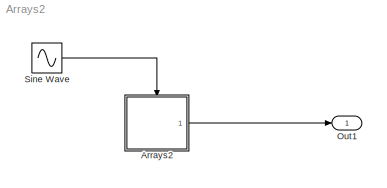
MODEL Arrays2
KIND model
CONFIG AbsTol = auto
CONFIG FixedStep = auto
CONFIG MaxStep = auto
CONFIG MinStep = auto
CONFIG RelTol = 1e-3
CONFIG Solver = FixedStepDiscrete
CONFIG SolverMode = Auto
CONFIG StartTime = 0.0
CONFIG StopTime = 10000.0
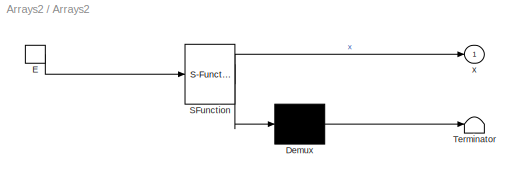
BLOCK [SubSystem] Arrays2
  MaskDescription = Stateflow diagram
  MaskDisplay = plot(sf('Private','sfblk','xIcon'),sf('Private','sfblk','yIcon'));text(0.5,0,sf('Private', 'sfblk', 'tIcon'),'HorizontalAl','Center','VerticalAl','Bottom');
  MaskIconFrame = off
  MaskIconOpaque = off
  MaskIconRotate = none
  MaskIconUnits = autoscale
  MaskSelfModifiable = on
  MaskType = Stateflow
  Ports = [0, 1, 0, 1]
  TreatAsAtomicUnit = off
BLOCK [Demux] Arrays2/ Demux 
  Outputs = 1
  Ports = [1, 1]
BLOCK [S-Function] Arrays2/ SFunction 
  FunctionName = sf_sfun
  PortCounts = [1 2]
  Ports = [1, 2]
  Tag = Stateflow S-Function Arrays2 1
BLOCK [Terminator] Arrays2/ Terminator 
BLOCK [TriggerPort] Arrays2/E
  Ports = [0, 1]
  ShowOutputPort = on
BLOCK [Outport] Arrays2/x
BLOCK [Outport] Out1
BLOCK [Sin] Sine Wave
  SampleTime = 0
  SineType = Time based
LINE Arrays2/ Demux :1 -> Arrays2/ Terminator :1
LINE Arrays2/ SFunction :1 -> Arrays2/ Demux :1
LINE Arrays2/ SFunction :2 -> Arrays2/x:1
LINE Arrays2/E:1 -> Arrays2/ SFunction :1
LINE Arrays2:1 -> Out1:1
LINE Sine Wave:1 -> Arrays2:trigger
CHART Arrays2 states=3 transitions=4
  STATE_LABEL 'A/\\nen:x[1][1]++\\nx[2][1]--'
  STATE_LABEL 'B/\\nen:x[1][2]++\\nx[2][2]--'
  STATE_LABEL 'C/\\nen:x[1][3]++\\nx[2][3]--'
